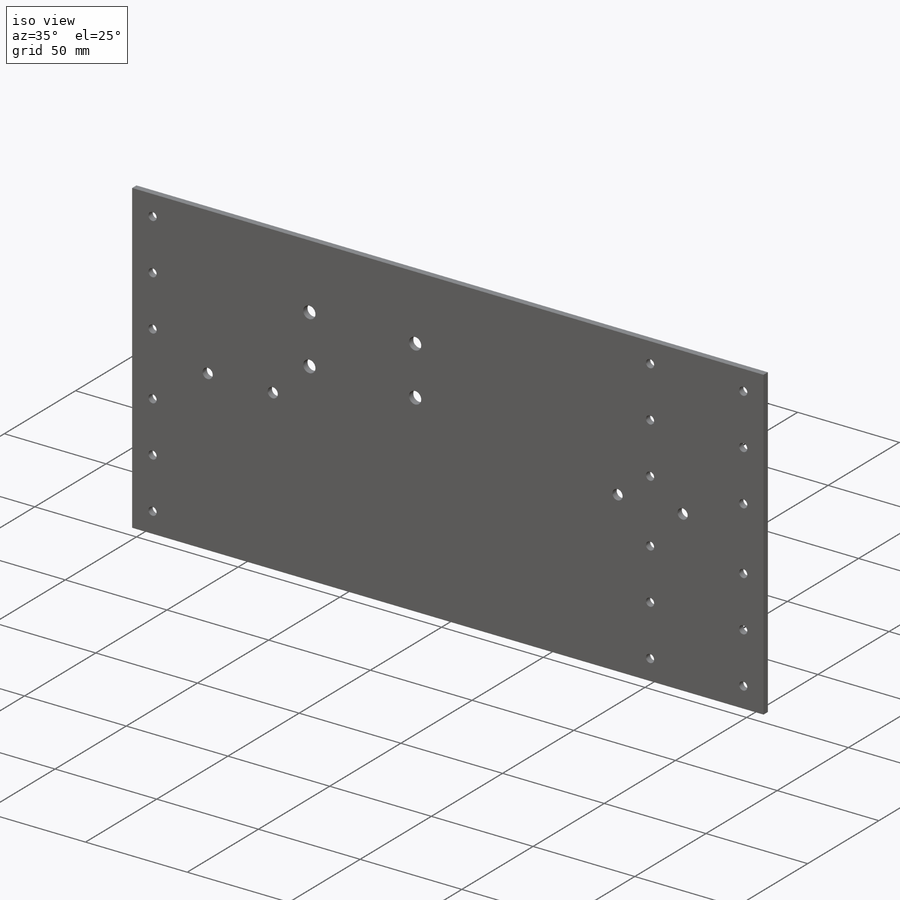
[diagram: iso view]
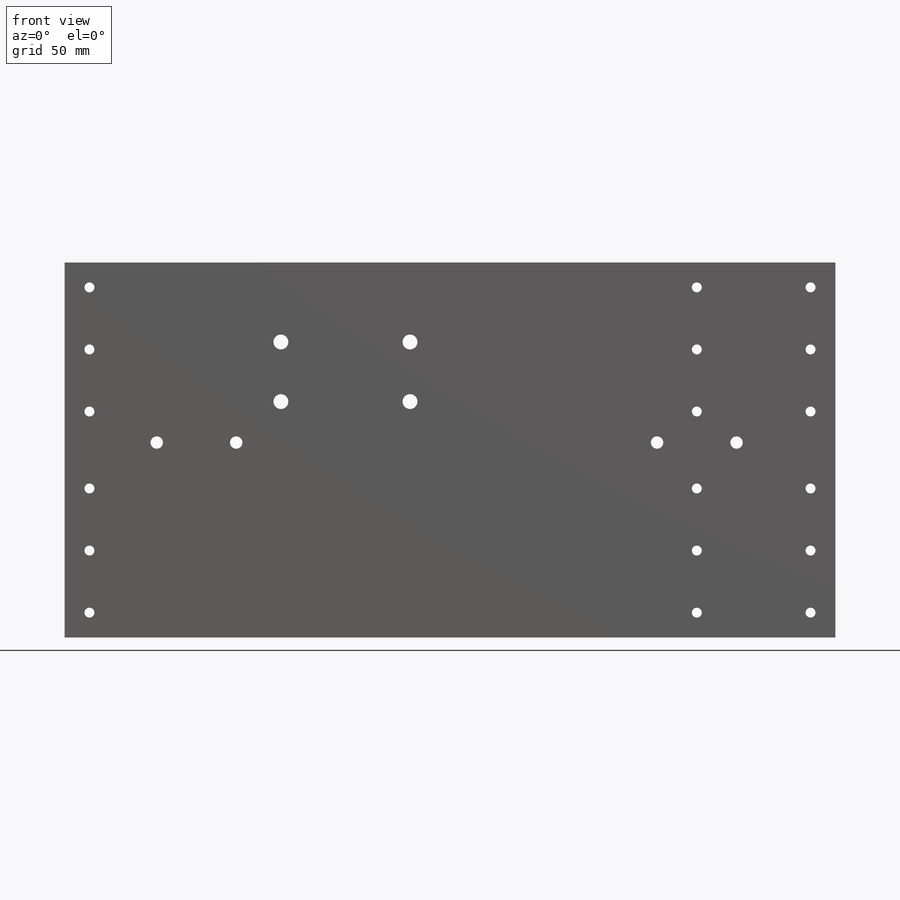
[diagram: front view]
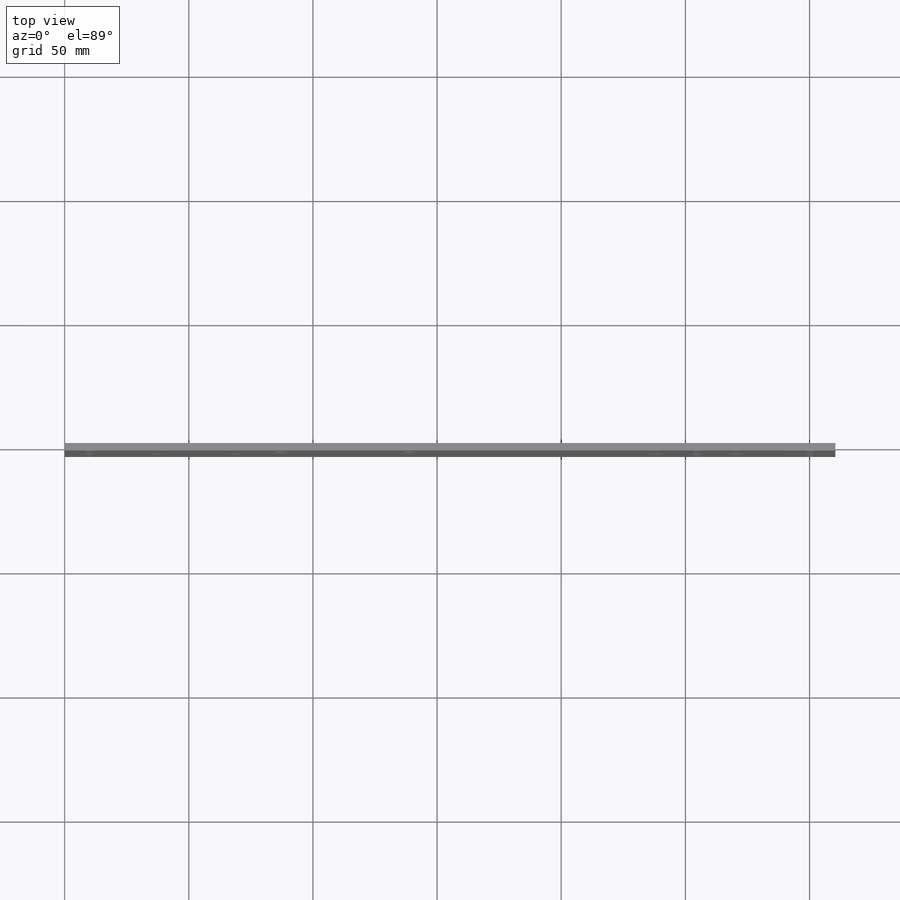
[diagram: top view]
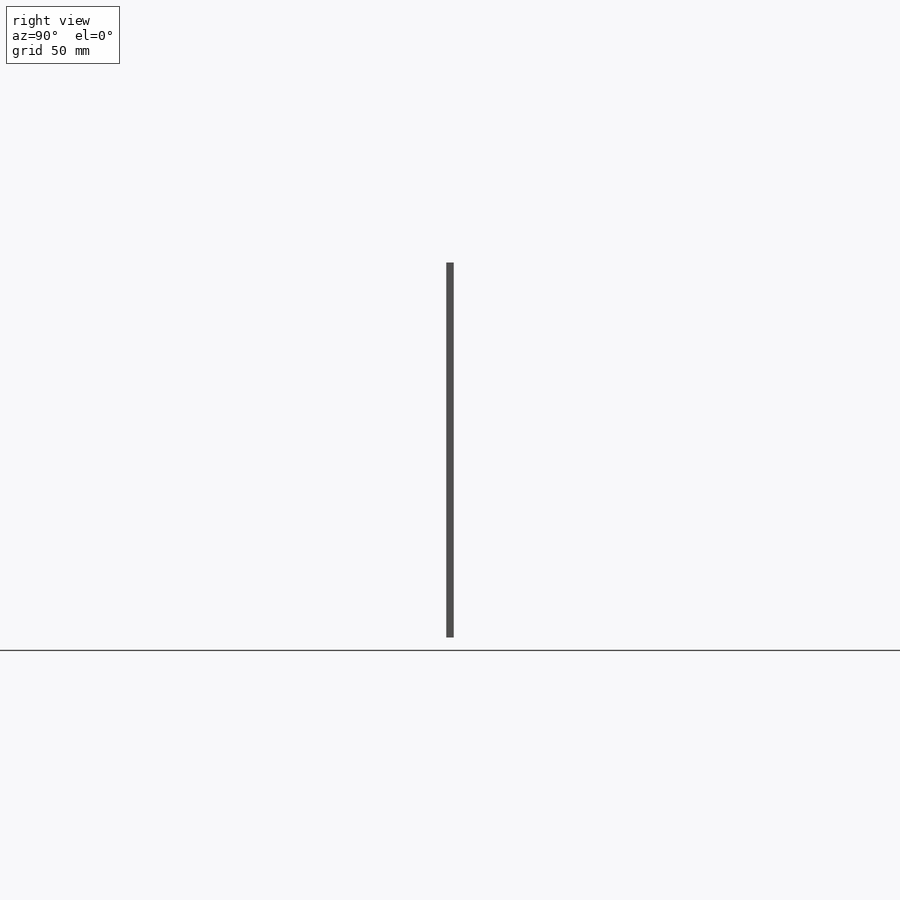
[diagram: right view]
SOLIDWORKS PART (.sldprt)
format: sldprt  version: not decoded by parser v0  size: 292,864 bytes
history: native  units: mm
features: sketch x6, cut_extrude x5, plane x3, material x1, extrude x1 (+9 scaffold rows collapsed)
feature tree (25):
  scaffold x9  (default folders/planes/origin — collapsed)
  material  "Material <nicht festgelegt>"
  plane  "Ebene vorne"
  plane  "Ebene oben"
  plane  "Ebene rechts"
  sketch  "Skizze1"  dims[D1=310.4mm D2=151.0mm]
  extrude  "Aufsatz-Linear austragen1"  Depth=3mm
  sketch  "Skizze2"  dims[c1.D5=4.0mm c1.D10=4.0mm c1.D9=4.0mm c1.D12=4.0mm c1.D15=4.0mm c1.D1=10.0mm c1.D2=10.0mm c1.D3=10.0mm c1.D4=10.0mm c1.D6=10.0mm c1.D7=10.0mm c1.D8=35.0mm c2.D9=40.0mm c2.D10=35.0mm c2.D11=60.0mm c2.D13=10.0mm c2.D14=60.0mm c2.D16=10.0mm c2.D17=10.0mm c2.D18=35.0mm c2.D19=60.0mm c2.D20=60.0mm c2.D21=35.0mm c2.D22=10.0mm]
  cut_extrude  "Schnitt-Linear austragen1"  Depth=10mm
  sketch  "Skizze3"  dims[c1.D1=4.0mm c1.D9=4.0mm c1.D2=55.8mm c1.D3=10.0mm c1.D4=10.0mm c1.D5=35.0mm c1.D6=35.0mm c1.D7=60.0mm c1.D8=60.0mm c2.D2=55.8mm]
  cut_extrude  "Schnitt-Linear austragen2"  Depth=10mm
  sketch  "Skizze4"  dims[c1.D1=6.0mm c1.D2=7.0mm c1.D3=171.3mm c1.D4=52.0mm c1.D5=24.0mm c2.D2=32.0mm]
  cut_extrude  "Schnitt-Linear austragen3"  Depth=10mm
  sketch  "Skizze5"  dims[D3=5.0mm D1=78.5mm D2=39.8mm D4=32.0mm]
  cut_extrude  "Schnitt-Linear austragen4"  Depth=10mm
  sketch  "Skizze6"  dims[D1=5.0mm D2=37.1mm D3=32.0mm D4=78.5mm]
  cut_extrude  "Schnitt-Linear austragen5"  Depth=10mm
decode coverage: 12 of 12 modeling features carry decoded parameters
note: suppression state not decoded; provenance and decode notes live in map.json
